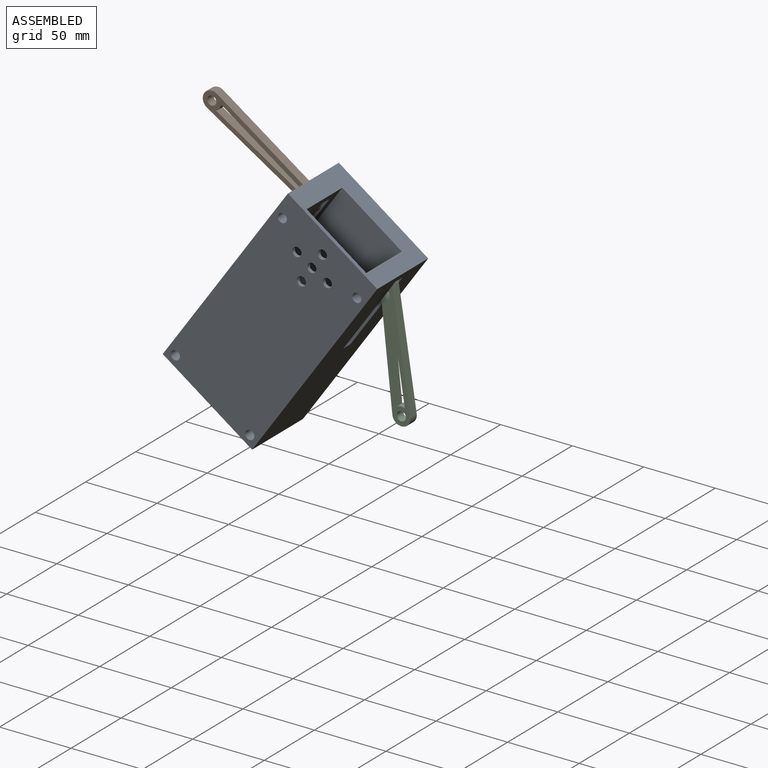
[diagram: assembled view]
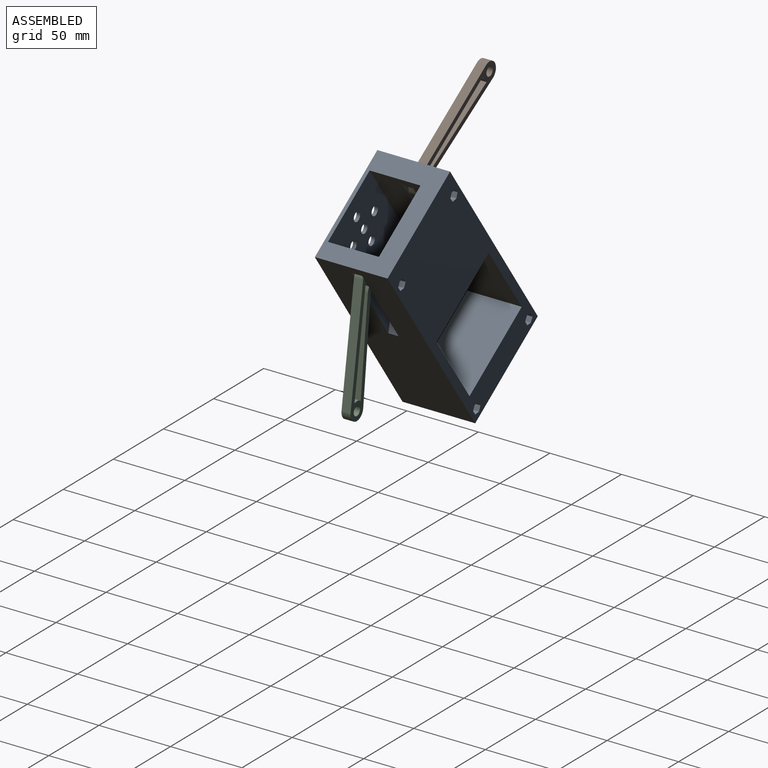
[diagram: assembled view, second angle]
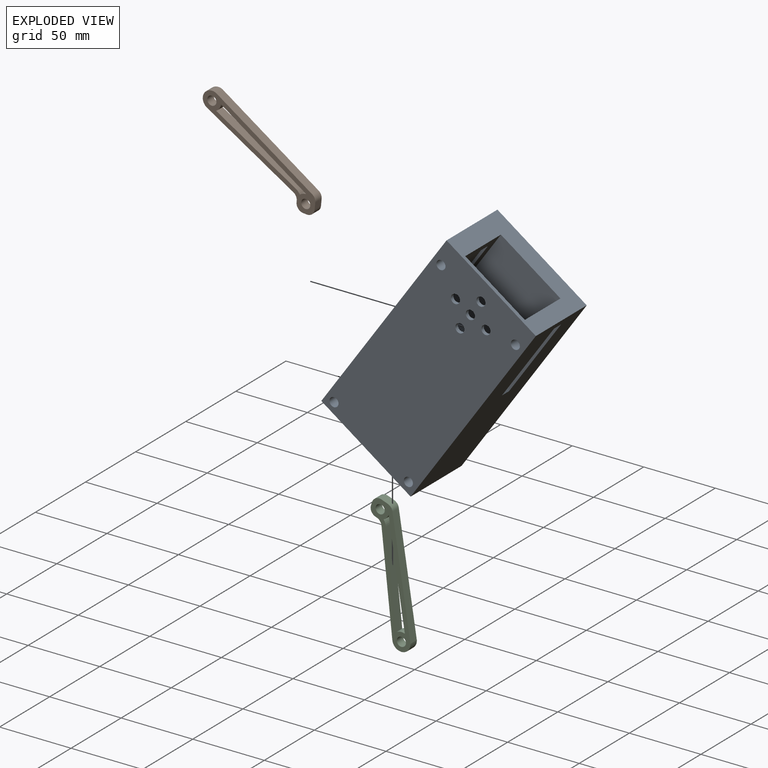
[diagram: exploded view]
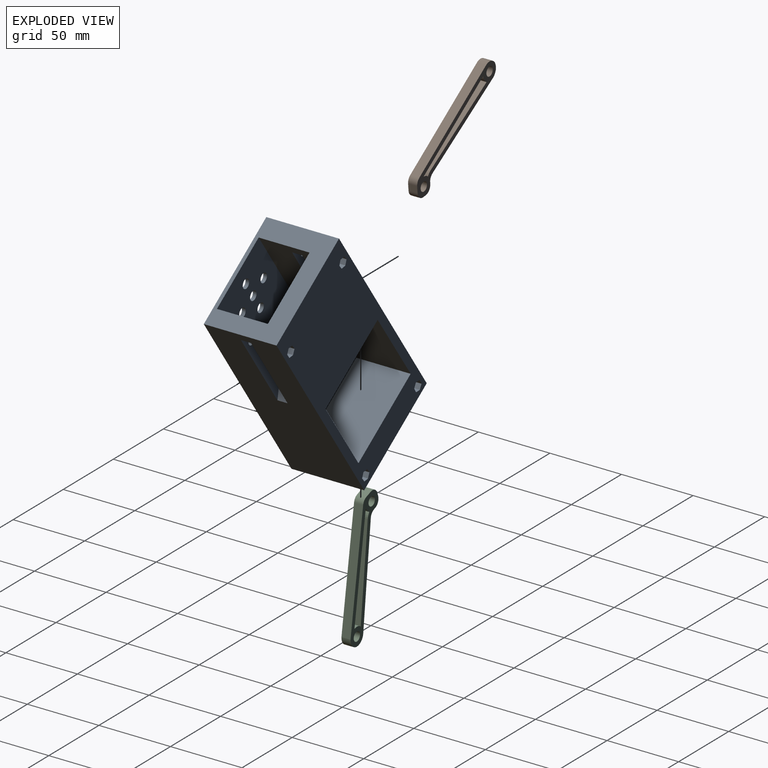
[diagram: exploded view, second angle]
ASSEMBLY  parts=3 mates=4
PART A: 83 faces, bbox 76.2x50.8x152.4 mm
  f0: plane 152.4x76.2mm, normal (0,1,0), area 7838.8mm2, adj f1,f9,f10,f13,f14,f16,f17,f19
  f1: plane 76.2x50.8mm, normal (0,0,1), area 2064.5mm2, adj f0,f6,f9,f10,f68,f69,f70,f71
  f2: plane 13.81x7.11mm, normal (0,0,-1), area 98.2mm2, adj f3,f4,f9,f71
  f3: plane 63.5x13.81mm, normal (0,1,0), area 749.7mm2, adj f2,f5,f9,f41,f71
  f4: plane 63.5x13.81mm, normal (0,-1,0), area 749.7mm2, adj f2,f5,f7,f9,f71
  f5: plane 13.81x13.81mm, normal (-0.71,0,0.71), area 138.9mm2, adj f3,f4,f9,f71
  f6: plane 152.4x76.2mm, normal (0,-1,0), area 11327.9mm2, adj f1,f9,f10,f11,f12,f40,f41,f67
  f7: cylinder r=3.17mm len=13.97mm, axis (0,-1,0), area 278.7mm2, adj f4,f44,f47,f50,f62,f64,f65
  f8: cylinder r=3.17mm len=13.97mm, axis (0,-1,0), area 278.7mm2, adj f39,f53,f56,f59,f60,f61,f63
  f9: plane 152.4x50.8mm, normal (-1,0,0), area 7290.3mm2, adj f0,f1,f2,f3,f4,f5,f6,f67
  f10: plane 152.4x50.8mm, normal (1,0,0), area 7290.3mm2, adj f0,f1,f6,f37,f38,f39,f66,f67
  f11: cylinder r=3.17mm len=44.45mm, axis (0,1,0), area 886.7mm2, adj f6,f24,f27,f30,f31,f32,f34
  f12: cylinder r=3.17mm len=44.45mm, axis (0,1,0), area 886.7mm2, adj f6,f15,f18,f21,f33,f35,f36
  f13: plane 6.35x3.06mm, normal (0.55,0,0.83), area 23.3mm2, adj f0,f14,f15,f16,f35
  f14: plane 6.35x3.66mm, normal (1,0,-0.06), area 23.3mm2, adj f0,f13,f15,f19,f33
  f15: plane 2.84x1.53mm, normal (0,1,0), area 0.5mm2, adj f12,f13,f14
  f16: plane 6.35x3.28mm, normal (-0.45,0,0.89), area 23.3mm2, adj f0,f13,f17,f18,f35
  f17: plane 6.35x3.66mm, normal (-1,0,0.06), area 23.3mm2, adj f0,f16,f18,f20,f36
  f18: plane 2.65x1.75mm, normal (0,1,0), area 0.5mm2, adj f12,f16,f17
  f19: plane 6.35x3.28mm, normal (0.45,0,-0.89), area 23.3mm2, adj f0,f14,f20,f21,f33
  f20: plane 6.35x3.06mm, normal (-0.55,0,-0.83), area 23.3mm2, adj f0,f17,f19,f21,f36
  f21: plane 3.17x1.01mm, normal (0,1,0), area 0.5mm2, adj f12,f19,f20
  f22: plane 6.35x3.66mm, normal (1,0,0.05), area 23.3mm2, adj f0,f23,f24,f28,f34
  f23: plane 6.35x3.08mm, normal (0.54,0,-0.84), area 23.3mm2, adj f0,f22,f24,f26,f31
  f24: plane 2.83x1.54mm, normal (0,1,0), area 0.5mm2, adj f11,f22,f23
  f25: plane 6.35x3.66mm, normal (-1,0,-0.05), area 23.3mm2, adj f0,f26,f27,f29,f32
  f26: plane 6.35x3.27mm, normal (-0.45,0,-0.89), area 23.3mm2, adj f0,f23,f25,f27,f31
  f27: plane 2.66x1.73mm, normal (0,1,0), area 0.5mm2, adj f11,f25,f26
  f28: plane 6.35x3.27mm, normal (0.45,0,0.89), area 23.3mm2, adj f0,f22,f29,f30,f34
  f29: plane 6.35x3.08mm, normal (-0.54,0,0.84), area 23.3mm2, adj f0,f25,f28,f30,f32
  f30: plane 3.17x1mm, normal (0,1,0), area 0.5mm2, adj f11,f28,f29
  f31: plane 3.17x1mm, normal (0,1,0), area 0.5mm2, adj f11,f23,f26
  f32: plane 2.83x1.54mm, normal (0,1,0), area 0.5mm2, adj f11,f25,f29
  f33: plane 2.65x1.75mm, normal (0,1,0), area 0.5mm2, adj f12,f14,f19
  f34: plane 2.66x1.73mm, normal (0,1,0), area 0.5mm2, adj f11,f22,f28
  f35: plane 3.17x1.01mm, normal (0,1,0), area 0.5mm2, adj f12,f13,f16
  f36: plane 2.84x1.53mm, normal (0,1,0), area 0.5mm2, adj f12,f17,f20
  f37: plane 11.59x7.11mm, normal (0,0,-1), area 82.5mm2, adj f10,f38,f39,f69
  f38: plane 63.5x11.59mm, normal (0,1,0), area 637.4mm2, adj f10,f37,f40,f66,f69
  f39: plane 63.5x11.59mm, normal (0,-1,0), area 637.4mm2, adj f8,f10,f37,f66,f69
  f40: cylinder r=3.17mm len=23.37mm, axis (0,-1,0), area 466.2mm2, adj f6,f38
  f41: cylinder r=3.17mm len=23.37mm, axis (0,-1,0), area 466.2mm2, adj f3,f6
  f42: plane 6.35x3.37mm, normal (-0.39,0,0.92), area 23.3mm2, adj f0,f43,f44,f45,f64
  f43: plane 6.35x3.64mm, normal (-0.99,0,0.12), area 23.3mm2, adj f0,f42,f44,f48,f65
  f44: plane 2.54x1.9mm, normal (0,1,0), area 0.5mm2, adj f7,f42,f43
  f45: plane 6.35x2.93mm, normal (0.6,0,0.8), area 23.3mm2, adj f0,f42,f46,f47,f64
  f46: plane 6.35x3.64mm, normal (0.99,0,-0.12), area 23.3mm2, adj f0,f45,f47,f49,f62
  f47: plane 2.92x1.47mm, normal (0,1,0), area 0.5mm2, adj f7,f45,f46
  f48: plane 6.35x2.93mm, normal (-0.6,0,-0.8), area 23.3mm2, adj f0,f43,f49,f50,f65
  f49: plane 6.35x3.37mm, normal (0.39,0,-0.92), area 23.3mm2, adj f0,f46,f48,f50,f62
  f50: plane 3.15x1.1mm, normal (0,1,0), area 0.5mm2, adj f7,f48,f49
  f51: plane 6.35x3.1mm, normal (-0.53,0,-0.85), area 23.3mm2, adj f0,f52,f53,f58,f61
  f52: plane 6.35x3.24mm, normal (0.47,0,-0.88), area 23.3mm2, adj f0,f51,f53,f55,f63
  f53: plane 3.17x0.98mm, normal (0,1,0), area 0.5mm2, adj f8,f51,f52
  f54: plane 6.35x3.1mm, normal (0.53,0,0.85), area 23.3mm2, adj f0,f55,f56,f57,f60
  f55: plane 6.35x3.66mm, normal (1,0,-0.04), area 23.3mm2, adj f0,f52,f54,f56,f63
  f56: plane 2.81x1.55mm, normal (0,1,0), area 0.5mm2, adj f8,f54,f55
  f57: plane 6.35x3.24mm, normal (-0.47,0,0.88), area 23.3mm2, adj f0,f54,f58,f59,f60
  f58: plane 6.35x3.66mm, normal (-1,0,0.04), area 23.3mm2, adj f0,f51,f57,f59,f61
  f59: plane 2.69x1.69mm, normal (0,1,0), area 0.5mm2, adj f8,f57,f58
  f60: plane 3.17x0.98mm, normal (0,1,0), area 0.5mm2, adj f8,f54,f57
  f61: plane 2.81x1.55mm, normal (0,1,0), area 0.5mm2, adj f8,f51,f58
  f62: plane 2.54x1.9mm, normal (0,1,0), area 0.5mm2, adj f7,f46,f49
  f63: plane 2.69x1.69mm, normal (0,1,0), area 0.5mm2, adj f8,f52,f55
  f64: plane 3.15x1.1mm, normal (0,1,0), area 0.5mm2, adj f7,f42,f45
  f65: plane 2.92x1.47mm, normal (0,1,0), area 0.5mm2, adj f7,f43,f48
  f66: plane 11.59x11.59mm, normal (0.71,0,0.71), area 116.6mm2, adj f10,f38,f39,f69
  f67: plane 76.2x50.8mm, normal (0,0,-1), area 3871mm2, adj f0,f6,f9,f10
  f68: plane 63.5x50.8mm, normal (0,1,0), area 3067.5mm2, adj f1,f69,f71,f72,f73,f74,f75,f76
  f69: plane 63.5x35.56mm, normal (-1,0,0), area 1888.9mm2, adj f1,f37,f38,f39,f66,f68,f70,f72
  f70: plane 63.5x50.8mm, normal (0,-1,0), area 3225.8mm2, adj f1,f69,f71,f72
  f71: plane 63.5x35.56mm, normal (1,0,0), area 1904.6mm2, adj f1,f2,f3,f4,f5,f68,f70,f72
  f72: plane 50.8x35.56mm, normal (0,0,1), area 1806.4mm2, adj f68,f69,f70,f71
  f73: cylinder r=3.17mm len=6.35mm, axis (0,-1,0), area 50.7mm2, adj f6,f68
  f74: cylinder r=3.17mm len=6.35mm, axis (0,-1,0), area 50.7mm2, adj f6,f68
  f75: cylinder r=3.17mm len=6.35mm, axis (0,-1,0), area 50.7mm2, adj f6,f68
  f76: cylinder r=3.17mm len=6.35mm, axis (0,-1,0), area 50.7mm2, adj f6,f68
  f77: cylinder r=3.17mm len=6.35mm, axis (0,-1,0), area 50.7mm2, adj f6,f68
  f78: plane 63.5x38.1mm, normal (0,0,-1), area 2419.3mm2, adj f0,f79,f81,f82
  f79: plane 57.15x38.1mm, normal (-1,0,0), area 2177.4mm2, adj f0,f78,f80,f82
  f80: plane 63.69x38.1mm, normal (0,0,1), area 2426.6mm2, adj f0,f79,f81,f82
  f81: plane 57.15x38.1mm, normal (1,0,0), area 2177.4mm2, adj f0,f78,f80,f82
  f82: plane 63.69x57.15mm, normal (0,1,0), area 3634.4mm2, adj f78,f79,f80,f81
PART B: 19 faces, bbox 82.6x53.9x6.4 mm
  f0: plane 82.55x53.94mm, normal (0,0,1), area 672.3mm2, adj f2,f3,f4,f5,f6,f7,f8,f9
  f1: plane 82.55x53.94mm, normal (0,0,-1), area 672.3mm2, adj f2,f3,f4,f5,f6,f7,f8,f9
  f2: plane 71.09x39.35mm, normal (0.48,-0.87,0), area 516mm2, adj f0,f1,f9,f10
  f3: plane 6.35x4.56mm, normal (1,0,0), area 28.9mm2, adj f0,f1,f10,f11
  f4: plane 6.35x2.54mm, normal (0,1,0), area 16.1mm2, adj f0,f1,f11,f12
  f5: plane 6.35x1.02mm, normal (-1,0,0), area 6.5mm2, adj f0,f1,f12,f13
  f6: plane 63.47x31.23mm, normal (-0.44,0.9,0), area 449.2mm2, adj f0,f1,f9,f13
  f7: cylinder r=3.17mm len=6.35mm, axis (0,0,-1), area 126.7mm2, adj f0,f1
  f8: cylinder r=3.17mm len=6.35mm, axis (0,0,-1), area 126.7mm2, adj f0,f1
  f9: cylinder r=6.35mm len=12.05mm, axis (0,0,-1), area 124.5mm2, adj f0,f1,f2,f6
  f10: cylinder r=5.08mm len=6.35mm, axis (0,0,-1), area 34.4mm2, adj f0,f1,f2,f3
  f11: cylinder r=5.08mm len=6.35mm, axis (0,0,1), area 50.7mm2, adj f0,f1,f3,f4
  f12: cylinder r=5.08mm len=6.35mm, axis (0,0,-1), area 50.7mm2, adj f0,f1,f4,f5
  f13: cylinder r=5.08mm len=6.35mm, axis (0,0,-1), area 35.9mm2, adj f0,f1,f5,f6
  f14: plane 63.18x34.97mm, normal (-0.48,0.87,0), area 458.6mm2, adj f0,f1,f16,f17
  f15: plane 58.53x28.81mm, normal (0.44,-0.9,0), area 414.3mm2, adj f0,f1,f16,f18
  f16: cylinder r=6.35mm len=6.35mm, axis (0,0,-1), area 40mm2, adj f0,f1,f14,f15
  f17: cylinder r=6.35mm len=6.35mm, axis (0,0,-1), area 30.6mm2, adj f0,f1,f14,f18
  f18: cylinder r=8.26mm len=6.35mm, axis (0,0,-1), area 27.1mm2, adj f0,f1,f15,f17
PART C: 19 faces, bbox 82.6x53.9x6.4 mm
  f0: plane 82.55x53.94mm, normal (0,0,1), area 652.8mm2, adj f1,f2,f3,f4,f5,f6,f7,f8
  f1: plane 6.35x4.56mm, normal (1,0,0), area 28.9mm2, adj f0,f9,f10,f13
  f2: plane 71.09x39.35mm, normal (0.48,0.87,0), area 516mm2, adj f0,f3,f9,f10
  f3: cylinder r=6.35mm len=12.05mm, axis (0,0,-1), area 124.5mm2, adj f0,f2,f4,f9
  f4: plane 63.47x31.23mm, normal (-0.44,-0.9,0), area 449.2mm2, adj f0,f3,f9,f11
  f5: plane 6.35x1.02mm, normal (-1,0,0), area 6.5mm2, adj f0,f9,f11,f12
  f6: cylinder r=3.17mm len=6.35mm, axis (0,0,-1), area 126.7mm2, adj f0,f9
  f7: plane 6.35x2.54mm, normal (0,-1,0), area 16.1mm2, adj f0,f9,f12,f13
  f8: cylinder r=3.17mm len=6.35mm, axis (0,0,-1), area 126.7mm2, adj f0,f9
  f9: plane 82.55x53.94mm, normal (0,0,-1), area 652.8mm2, adj f1,f2,f3,f4,f5,f6,f7,f8
  f10: cylinder r=5.08mm len=6.35mm, axis (0,0,-1), area 34.4mm2, adj f0,f1,f2,f9
  f11: cylinder r=5.08mm len=6.35mm, axis (0,0,-1), area 35.9mm2, adj f0,f4,f5,f9
  f12: cylinder r=5.08mm len=6.35mm, axis (0,0,-1), area 50.7mm2, adj f0,f5,f7,f9
  f13: cylinder r=5.08mm len=6.35mm, axis (0,0,1), area 50.7mm2, adj f0,f1,f7,f9
  f14: plane 63.8x35.31mm, normal (-0.48,-0.87,0), area 463mm2, adj f0,f9,f16,f17
  f15: plane 58.73x28.91mm, normal (0.44,0.9,0), area 415.7mm2, adj f0,f9,f17,f18
  f16: cylinder r=6.22mm len=6.35mm, axis (0,0,-1), area 34mm2, adj f0,f9,f14,f18
  f17: cylinder r=6.22mm len=6.35mm, axis (0,0,-1), area 42.1mm2, adj f0,f9,f14,f15
  f18: cylinder r=8.13mm len=6.35mm, axis (0,0,-1), area 27.7mm2, adj f0,f9,f15,f16
PLACE A rot(axis=(0,1,0),35deg) t=(-65.45,435.76,-58.55)mm
PLACE B rot(axis=(-1,0.05,0.05),90.1deg) t=(21.74,408.33,20.57)mm
PLACE C rot(axis=(-0.71,-0.5,-0.5),109.2deg) t=(87.18,408.33,13.66)mm
MATE cylindrical C.f6 <-> A.f8  axis (0,-1,0) through (70.12,408.33,13.13)mm
MATE revolute B.f8 <-> A.f7  axis (0,-1,0) through (18.13,408.33,49.58)mm
MATE revolute C.f6 <-> A.f8  axis (0,-1,0) through (70.12,408.33,13.13)mm
MATE pin_slot B.f8 <-> A.f7  axis (0,-1,0) through (18.13,408.33,49.58)mm
